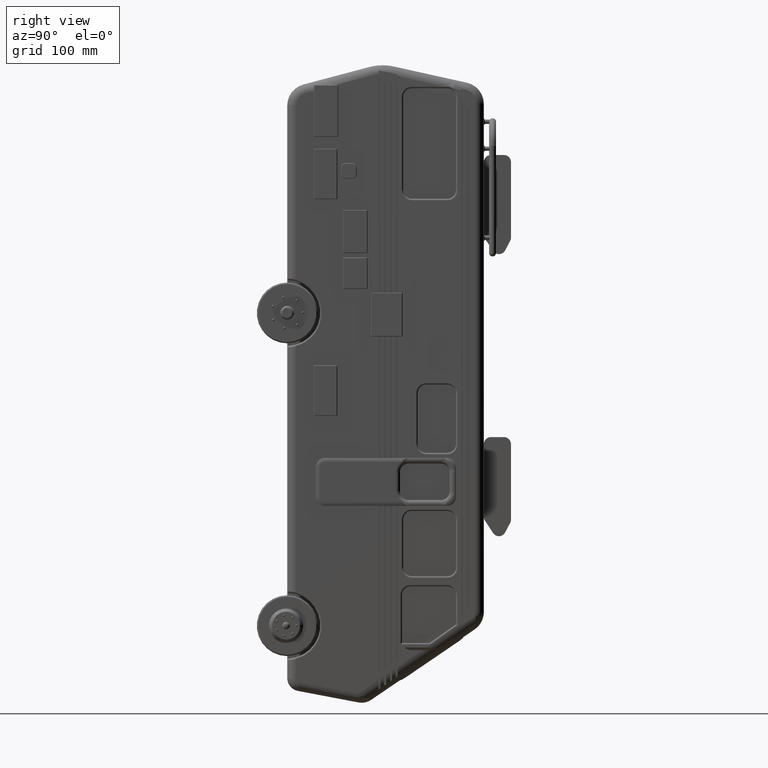
[diagram: clean part render]
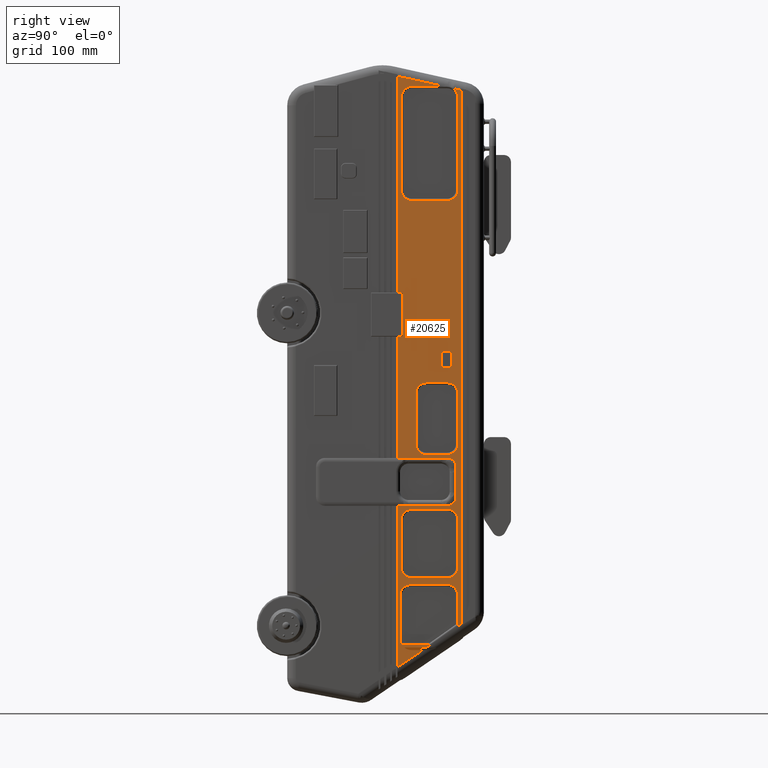
[diagram: same view with one face highlighted and labeled with its STEP entity id]
A machine part, right view. The second image highlights one B-rep face of the part: STEP entity #20625.
In plain terms, the highlighted planar face has unit normal (-1, -0, 0).
Its self-contained STEP definition (entity closure, byte-faithful):
#157 = CIRCLE ( 'NONE', #29480, 11.99999999999999645 ) ;
#339 = ORIENTED_EDGE ( 'NONE', *, *, #18274, .F. ) ;
#357 = ORIENTED_EDGE ( 'NONE', *, *, #33120, .T. ) ;
#441 = VECTOR ( 'NONE', #5405, 1000.000000000000000 ) ;
#612 = CARTESIAN_POINT ( 'NONE',  ( 125.0000000000000000, 303.6037843163708203, -674.7249456233656701 ) ) ;
#634 = CARTESIAN_POINT ( 'NONE',  ( 125.0000000000000000, 303.6037843163708203, -525.1387260740397096 ) ) ;
#698 = ORIENTED_EDGE ( 'NONE', *, *, #31299, .T. ) ;
#830 = DIRECTION ( 'NONE',  ( -0.000000000000000000, -1.000000000000000000, -0.000000000000000000 ) ) ;
#1021 = DIRECTION ( 'NONE',  ( -1.000000000000000000, -0.000000000000000000, 0.000000000000000000 ) ) ;
#1397 = ORIENTED_EDGE ( 'NONE', *, *, #27466, .T. ) ;
#1501 = ORIENTED_EDGE ( 'NONE', *, *, #14553, .T. ) ;
#1519 = DIRECTION ( 'NONE',  ( -0.000000000000000000, -1.000000000000000000, -0.000000000000000000 ) ) ;
#1606 = ORIENTED_EDGE ( 'NONE', *, *, #17308, .T. ) ;
#1633 = CARTESIAN_POINT ( 'NONE',  ( 125.0000000000000000, 286.5556520002770640, -583.9884732095368918 ) ) ;
#1727 = CARTESIAN_POINT ( 'NONE',  ( 125.0000000000000000, 286.5556520002770640, -529.0364440370944976 ) ) ;
#1951 = CARTESIAN_POINT ( 'NONE',  ( 125.0000000000000000, 298.5599982705451225, -220.9456795865248750 ) ) ;
#2019 = CARTESIAN_POINT ( 'NONE',  ( 125.0000000000000000, 233.6765236363687848, -113.8403045673677383 ) ) ;
#2027 = CARTESIAN_POINT ( 'NONE',  ( 125.0000000000000000, 298.5599982705451225, -655.0422913873096604 ) ) ;
#2155 = LINE ( 'NONE', #1727, #23562 ) ;
#2156 = ORIENTED_EDGE ( 'NONE', *, *, #29749, .F. ) ;
#2189 = EDGE_CURVE ( 'NONE', #19167, #23605, #28221, .T. ) ;
#2328 = EDGE_CURVE ( 'NONE', #6617, #37917, #35256, .T. ) ;
#2393 = DIRECTION ( 'NONE',  ( -1.000000000000000000, -0.000000000000000000, 0.000000000000000000 ) ) ;
#2469 = DIRECTION ( 'NONE',  ( -1.000000000000000000, -0.000000000000000000, 0.000000000000000000 ) ) ;
#2569 = CARTESIAN_POINT ( 'NONE',  ( 125.0000000000000000, 245.6765236363687848, -655.0422913873097741 ) ) ;
#2729 = VECTOR ( 'NONE', #40592, 1000.000000000000000 ) ;
#2769 = VERTEX_POINT ( 'NONE', #34084 ) ;
#2800 = CARTESIAN_POINT ( 'NONE',  ( 125.0000000000000000, 245.6765236363687848, -600.0470881281829634 ) ) ;
#2811 = VECTOR ( 'NONE', #7643, 999.9999999999998863 ) ;
#2923 = CARTESIAN_POINT ( 'NONE',  ( 125.0000000000000000, 286.5599982705450657, -588.0470881281829634 ) ) ;
#3038 = VECTOR ( 'NONE', #18476, 1000.000000000000000 ) ;
#3081 = CIRCLE ( 'NONE', #37182, 12.00000000000001066 ) ;
#3151 = VECTOR ( 'NONE', #16673, 1000.000000000000000 ) ;
#3718 = CARTESIAN_POINT ( 'NONE',  ( 125.0000000000000000, 302.5098556841416553, -719.8426730421438151 ) ) ;
#3810 = CARTESIAN_POINT ( 'NONE',  ( 125.0000000000000000, 296.5556520002771208, -573.9884732095366644 ) ) ;
#3943 = CARTESIAN_POINT ( 'NONE',  ( 125.0000000000000000, 282.7492049491030457, -101.8403045673676957 ) ) ;
#4031 = DIRECTION ( 'NONE',  ( -1.000000000000000000, -0.000000000000000000, 0.000000000000000000 ) ) ;
#4041 = LINE ( 'NONE', #23314, #40182 ) ;
#4184 = CARTESIAN_POINT ( 'NONE',  ( 125.0000000000000000, 245.6765236363687848, -220.9456795865249319 ) ) ;
#4347 = CARTESIAN_POINT ( 'NONE',  ( 125.0000000000000000, 258.1970487256591014, -750.0000000000000000 ) ) ;
#4423 = CARTESIAN_POINT ( 'NONE',  ( 125.0000000000000000, 229.3038499920727702, 0.000000000000000000 ) ) ;
#4508 = LINE ( 'NONE', #33534, #30570 ) ;
#4594 = VERTEX_POINT ( 'NONE', #14796 ) ;
#4966 = CARTESIAN_POINT ( 'NONE',  ( 125.0000000000000000, 245.6765236363687848, -113.8403045673676530 ) ) ;
#5116 = CARTESIAN_POINT ( 'NONE',  ( 125.0000000000000000, 259.6091833179260675, -747.0000000000000000 ) ) ;
#5140 = DIRECTION ( 'NONE',  ( -1.000000000000000000, -0.000000000000000000, 0.000000000000000000 ) ) ;
#5157 = LINE ( 'NONE', #21449, #2729 ) ;
#5239 = ORIENTED_EDGE ( 'NONE', *, *, #16142, .F. ) ;
#5240 = EDGE_CURVE ( 'NONE', #28544, #17658, #7276, .T. ) ;
#5405 = DIRECTION ( 'NONE',  ( 0.000000000000000000, -1.000000000000000000, 0.000000000000000000 ) ) ;
#5412 = CARTESIAN_POINT ( 'NONE',  ( 125.0000000000000000, 255.7747470904610623, -747.0000000000000000 ) ) ;
#5419 = CARTESIAN_POINT ( 'NONE',  ( 125.0000000000000000, 286.5599982705450657, -525.1387260740397096 ) ) ;
#5532 = ORIENTED_EDGE ( 'NONE', *, *, #6545, .T. ) ;
#5844 = VERTEX_POINT ( 'NONE', #6952 ) ;
#5859 = EDGE_CURVE ( 'NONE', #8742, #28544, #18052, .T. ) ;
#5929 = EDGE_CURVE ( 'NONE', #28363, #27022, #37049, .T. ) ;
#6098 = VERTEX_POINT ( 'NONE', #3718 ) ;
#6156 = VERTEX_POINT ( 'NONE', #34473 ) ;
#6191 = CARTESIAN_POINT ( 'NONE',  ( 125.0000000000000000, 233.6765236363687848, -600.0470881281830771 ) ) ;
#6245 = CIRCLE ( 'NONE', #11738, 12.00000000000001066 ) ;
#6373 = DIRECTION ( 'NONE',  ( -0.000000000000000000, -0.000000000000000000, 1.000000000000000000 ) ) ;
#6378 = CARTESIAN_POINT ( 'NONE',  ( 125.0000000000000000, 298.5599982705451225, -686.7249456233657838 ) ) ;
#6513 = LINE ( 'NONE', #36381, #33178 ) ;
#6518 = ORIENTED_EDGE ( 'NONE', *, *, #12597, .T. ) ;
#6545 = EDGE_CURVE ( 'NONE', #29831, #2769, #35048, .T. ) ;
#6548 = LINE ( 'NONE', #28808, #31191 ) ;
#6605 = CARTESIAN_POINT ( 'NONE',  ( 125.0000000000000000, 302.5098556841416553, -106.2245003896110944 ) ) ;
#6617 = VERTEX_POINT ( 'NONE', #38609 ) ;
#6624 = ORIENTED_EDGE ( 'NONE', *, *, #18803, .T. ) ;
#6695 = AXIS2_PLACEMENT_3D ( 'NONE', #31133, #21344, #37728 ) ;
#6952 = CARTESIAN_POINT ( 'NONE',  ( 125.0000000000000000, 293.8402461956485467, -104.3010178985947931 ) ) ;
#7128 = DIRECTION ( 'NONE',  ( 0.000000000000000000, 0.000000000000000000, 1.000000000000000000 ) ) ;
#7239 = DIRECTION ( 'NONE',  ( -0.000000000000000000, -0.000000000000000000, 1.000000000000000000 ) ) ;
#7250 = VERTEX_POINT ( 'NONE', #22042 ) ;
#7276 = LINE ( 'NONE', #40164, #8511 ) ;
#7281 = EDGE_CURVE ( 'NONE', #41910, #28688, #19232, .T. ) ;
#7321 = DIRECTION ( 'NONE',  ( -0.000000000000000000, 1.000000000000000000, -0.000000000000000000 ) ) ;
#7363 = LINE ( 'NONE', #612, #23966 ) ;
#7493 = EDGE_CURVE ( 'NONE', #9113, #19508, #3081, .T. ) ;
#7643 = DIRECTION ( 'NONE',  ( -0.000000000000000000, 0.8267128799608792766, 0.5626240433067085656 ) ) ;
#7762 = CARTESIAN_POINT ( 'NONE',  ( 125.0000000000000000, 298.5599982705451225, -721.5178463309102881 ) ) ;
#7878 = LINE ( 'NONE', #36890, #2811 ) ;
#7913 = CARTESIAN_POINT ( 'NONE',  ( 125.0000000000000000, 298.5599982705451225, -705.7924860525527038 ) ) ;
#8100 = EDGE_CURVE ( 'NONE', #17480, #42007, #23697, .T. ) ;
#8124 = VERTEX_POINT ( 'NONE', #3810 ) ;
#8406 = VECTOR ( 'NONE', #30975, 1000.000000000000000 ) ;
#8433 = VERTEX_POINT ( 'NONE', #17040 ) ;
#8452 = AXIS2_PLACEMENT_3D ( 'NONE', #15130, #35786, #28995 ) ;
#8511 = VECTOR ( 'NONE', #11366, 1000.000000000000000 ) ;
#8527 = VECTOR ( 'NONE', #28728, 1000.000000000000000 ) ;
#8601 = DIRECTION ( 'NONE',  ( 0.000000000000000000, 0.000000000000000000, 1.000000000000000000 ) ) ;
#8742 = VERTEX_POINT ( 'NONE', #25307 ) ;
#9078 = EDGE_CURVE ( 'NONE', #24638, #8742, #4508, .T. ) ;
#9113 = VERTEX_POINT ( 'NONE', #2923 ) ;
#9165 = EDGE_CURVE ( 'NONE', #8433, #9113, #36022, .T. ) ;
#9167 = AXIS2_PLACEMENT_3D ( 'NONE', #21669, #25476, #12041 ) ;
#9231 = FACE_BOUND ( 'NONE', #40627, .T. ) ;
#9321 = EDGE_CURVE ( 'NONE', #19508, #29831, #24295, .T. ) ;
#9407 = VERTEX_POINT ( 'NONE', #40616 ) ;
#9578 = VECTOR ( 'NONE', #35541, 1000.000000000000000 ) ;
#9689 = ORIENTED_EDGE ( 'NONE', *, *, #25150, .T. ) ;
#9824 = ORIENTED_EDGE ( 'NONE', *, *, #33940, .T. ) ;
#9994 = EDGE_CURVE ( 'NONE', #31913, #33259, #36863, .T. ) ;
#10040 = ORIENTED_EDGE ( 'NONE', *, *, #31592, .F. ) ;
#10383 = EDGE_CURVE ( 'NONE', #28688, #38789, #24460, .T. ) ;
#10546 = CARTESIAN_POINT ( 'NONE',  ( 125.0000000000000000, 302.5098556841416553, 0.000000000000000000 ) ) ;
#10639 = CARTESIAN_POINT ( 'NONE',  ( 125.0000000000000000, 242.0802129805560980, -529.0365180372574514 ) ) ;
#10758 = CARTESIAN_POINT ( 'NONE',  ( 125.0000000000000000, 430.3348421406453213, -134.5843848445908861 ) ) ;
#10810 = ORIENTED_EDGE ( 'NONE', *, *, #30506, .T. ) ;
#10848 = CARTESIAN_POINT ( 'NONE',  ( 125.0000000000000000, 298.5599982705451225, -705.7924860525527038 ) ) ;
#10854 = CARTESIAN_POINT ( 'NONE',  ( 125.0000000000000000, 279.2295902267034080, -529.0365180372574514 ) ) ;
#10931 = VECTOR ( 'NONE', #36359, 1000.000000000000000 ) ;
#11056 = DIRECTION ( 'NONE',  ( -0.000000000000000000, -0.000000000000000000, -1.000000000000000000 ) ) ;
#11215 = AXIS2_PLACEMENT_3D ( 'NONE', #4184, #1021, #14051 ) ;
#11366 = DIRECTION ( 'NONE',  ( -0.000000000000000000, -0.000000000000000000, 1.000000000000000000 ) ) ;
#11388 = VERTEX_POINT ( 'NONE', #37419 ) ;
#11504 = EDGE_CURVE ( 'NONE', #20799, #5844, #23108, .T. ) ;
#11613 = DIRECTION ( 'NONE',  ( -0.000000000000000000, -1.000000000000000000, -0.000000000000000000 ) ) ;
#11626 = EDGE_CURVE ( 'NONE', #8124, #28363, #25547, .T. ) ;
#11738 = AXIS2_PLACEMENT_3D ( 'NONE', #29608, #38773, #36174 ) ;
#11849 = DIRECTION ( 'NONE',  ( -0.000000000000000000, -0.000000000000000000, 1.000000000000000000 ) ) ;
#11877 = CARTESIAN_POINT ( 'NONE',  ( 125.0000000000000000, 286.5556520002770640, -529.0364440370944976 ) ) ;
#12021 = VERTEX_POINT ( 'NONE', #6191 ) ;
#12041 = DIRECTION ( 'NONE',  ( 0.000000000000000000, 0.000000000000000000, -1.000000000000000000 ) ) ;
#12077 = CARTESIAN_POINT ( 'NONE',  ( 125.0000000000000000, 286.5556520002770640, -529.0365180372574514 ) ) ;
#12144 = ORIENTED_EDGE ( 'NONE', *, *, #37863, .T. ) ;
#12215 = ORIENTED_EDGE ( 'NONE', *, *, #14284, .T. ) ;
#12365 = VECTOR ( 'NONE', #26670, 1000.000000000000000 ) ;
#12404 = ORIENTED_EDGE ( 'NONE', *, *, #22891, .T. ) ;
#12427 = DIRECTION ( 'NONE',  ( 0.000000000000000000, 1.000000000000000000, 0.000000000000000000 ) ) ;
#12516 = DIRECTION ( 'NONE',  ( -1.000000000000000000, -0.000000000000000000, 0.000000000000000000 ) ) ;
#12597 = EDGE_CURVE ( 'NONE', #17658, #41910, #157, .T. ) ;
#12607 = VECTOR ( 'NONE', #19296, 1000.000000000000000 ) ;
#12717 = LINE ( 'NONE', #38934, #8527 ) ;
#12875 = DIRECTION ( 'NONE',  ( 0.000000000000000000, 0.000000000000000000, 1.000000000000000000 ) ) ;
#13079 = CARTESIAN_POINT ( 'NONE',  ( 125.0000000000000000, 241.6491771817819654, -529.0364440370944976 ) ) ;
#13132 = VECTOR ( 'NONE', #11056, 1000.000000000000000 ) ;
#13322 = ORIENTED_EDGE ( 'NONE', *, *, #31502, .F. ) ;
#13410 = DIRECTION ( 'NONE',  ( 0.000000000000000000, 0.000000000000000000, 1.000000000000000000 ) ) ;
#13417 = CARTESIAN_POINT ( 'NONE',  ( 125.0000000000000000, 259.6091833179260675, -747.0000000000000000 ) ) ;
#13764 = VERTEX_POINT ( 'NONE', #1951 ) ;
#13996 = VERTEX_POINT ( 'NONE', #10854 ) ;
#14044 = CARTESIAN_POINT ( 'NONE',  ( 125.0000000000000000, 303.6037843163708203, -588.0470881281829634 ) ) ;
#14049 = ORIENTED_EDGE ( 'NONE', *, *, #34078, .T. ) ;
#14051 = DIRECTION ( 'NONE',  ( 0.000000000000000000, 0.000000000000000000, 1.000000000000000000 ) ) ;
#14093 = CARTESIAN_POINT ( 'NONE',  ( 125.0000000000000000, 291.3439136609864590, -406.9897087741020982 ) ) ;
#14264 = EDGE_CURVE ( 'NONE', #4594, #9407, #32997, .T. ) ;
#14284 = EDGE_CURVE ( 'NONE', #23989, #24056, #34844, .T. ) ;
#14286 = LINE ( 'NONE', #634, #29621 ) ;
#14346 = EDGE_CURVE ( 'NONE', #22848, #27022, #22701, .T. ) ;
#14553 = EDGE_CURVE ( 'NONE', #20934, #23989, #39819, .T. ) ;
#14623 = CARTESIAN_POINT ( 'NONE',  ( 125.0000000000000000, 262.4472728460677899, -442.6375505512436348 ) ) ;
#14681 = EDGE_CURVE ( 'NONE', #16564, #34504, #24268, .T. ) ;
#14796 = CARTESIAN_POINT ( 'NONE',  ( 125.0000000000000000, 296.5556520002771208, -539.0364440370946113 ) ) ;
#14850 = CARTESIAN_POINT ( 'NONE',  ( 125.0000000000000000, 303.6037843163708203, -743.8657121789846087 ) ) ;
#14922 = VECTOR ( 'NONE', #11849, 1000.000000000000000 ) ;
#14952 = CIRCLE ( 'NONE', #6695, 12.00000000000001066 ) ;
#15003 = ORIENTED_EDGE ( 'NONE', *, *, #9994, .T. ) ;
#15080 = CARTESIAN_POINT ( 'NONE',  ( 125.0000000000000000, 234.9519402214909576, -339.0091283654554672 ) ) ;
#15130 = CARTESIAN_POINT ( 'NONE',  ( 125.0000000000000000, 262.4472728460677331, -513.1387260740395959 ) ) ;
#15137 = ORIENTED_EDGE ( 'NONE', *, *, #14264, .F. ) ;
#15574 = VERTEX_POINT ( 'NONE', #35323 ) ;
#15685 = CARTESIAN_POINT ( 'NONE',  ( 125.0000000000000000, 250.4472728460677047, -513.1387260740395959 ) ) ;
#15843 = DIRECTION ( 'NONE',  ( 0.000000000000000000, -0.9762608648340964645, 0.2165980696898799629 ) ) ;
#16142 = EDGE_CURVE ( 'NONE', #42007, #17519, #21137, .T. ) ;
#16328 = ORIENTED_EDGE ( 'NONE', *, *, #9078, .T. ) ;
#16457 = VECTOR ( 'NONE', #21096, 1000.000000000000000 ) ;
#16564 = VERTEX_POINT ( 'NONE', #39056 ) ;
#16619 = ORIENTED_EDGE ( 'NONE', *, *, #9165, .T. ) ;
#16631 = DIRECTION ( 'NONE',  ( -0.000000000000000000, -1.000000000000000000, -0.000000000000000000 ) ) ;
#16637 = VECTOR ( 'NONE', #38014, 999.9999999999998863 ) ;
#16673 = DIRECTION ( 'NONE',  ( 0.000000000000000000, -1.000000000000000000, 0.000000000000000000 ) ) ;
#16745 = EDGE_CURVE ( 'NONE', #2769, #29641, #6548, .T. ) ;
#16893 = CARTESIAN_POINT ( 'NONE',  ( 125.0000000000000000, 286.5556520002771208, -573.9884732095367781 ) ) ;
#17040 = CARTESIAN_POINT ( 'NONE',  ( 125.0000000000000000, 245.6765236363688416, -588.0470881281829634 ) ) ;
#17142 = CIRCLE ( 'NONE', #38939, 12.00000000000001066 ) ;
#17279 = ORIENTED_EDGE ( 'NONE', *, *, #32659, .T. ) ;
#17305 = CARTESIAN_POINT ( 'NONE',  ( 125.0000000000000000, 259.6091833179260675, -749.0389639580405401 ) ) ;
#17308 = EDGE_CURVE ( 'NONE', #33331, #34091, #18045, .T. ) ;
#17480 = VERTEX_POINT ( 'NONE', #36637 ) ;
#17519 = VERTEX_POINT ( 'NONE', #20676 ) ;
#17658 = VERTEX_POINT ( 'NONE', #2019 ) ;
#17831 = CARTESIAN_POINT ( 'NONE',  ( 125.0000000000000000, 232.3145492378976940, -743.8657121789846087 ) ) ;
#17988 = AXIS2_PLACEMENT_3D ( 'NONE', #31792, #40949, #37757 ) ;
#17989 = ORIENTED_EDGE ( 'NONE', *, *, #11626, .T. ) ;
#17992 = CIRCLE ( 'NONE', #29671, 12.00000000000001066 ) ;
#18045 = LINE ( 'NONE', #31055, #14922 ) ;
#18052 = CIRCLE ( 'NONE', #11215, 12.00000000000001066 ) ;
#18092 = AXIS2_PLACEMENT_3D ( 'NONE', #19772, #2469, #18945 ) ;
#18252 = DIRECTION ( 'NONE',  ( -1.000000000000000000, -0.000000000000000000, 0.000000000000000000 ) ) ;
#18274 = EDGE_CURVE ( 'NONE', #6156, #17480, #4041, .T. ) ;
#18285 = ORIENTED_EDGE ( 'NONE', *, *, #26625, .F. ) ;
#18332 = CARTESIAN_POINT ( 'NONE',  ( 125.0000000000000000, 279.6606272595043947, -529.0364440370944976 ) ) ;
#18366 = DIRECTION ( 'NONE',  ( 0.000000000000000000, 0.000000000000000000, 1.000000000000000000 ) ) ;
#18476 = DIRECTION ( 'NONE',  ( 0.000000000000000000, 1.000000000000000000, 0.000000000000000000 ) ) ;
#18484 = DIRECTION ( 'NONE',  ( 0.000000000000000000, -1.000000000000000000, 0.000000000000000000 ) ) ;
#18508 = ORIENTED_EDGE ( 'NONE', *, *, #8100, .F. ) ;
#18636 = B_SPLINE_CURVE_WITH_KNOTS ( 'NONE', 3,
 ( #38683, #13079, #26336, #19277 ),
 .UNSPECIFIED., .F., .F.,
 ( 4, 4 ),
 ( 2.500467750533632250E-15, 0.0006457498208451285630 ),
 .UNSPECIFIED. ) ;
#18724 = VECTOR ( 'NONE', #12875, 1000.000000000000000 ) ;
#18803 = EDGE_CURVE ( 'NONE', #5844, #15574, #21081, .T. ) ;
#18860 = EDGE_CURVE ( 'NONE', #40160, #13996, #29134, .T. ) ;
#18889 = VERTEX_POINT ( 'NONE', #17305 ) ;
#18942 = VECTOR ( 'NONE', #30922, 1000.000000000000000 ) ;
#18945 = DIRECTION ( 'NONE',  ( 0.000000000000000000, 0.000000000000000000, 1.000000000000000000 ) ) ;
#19062 = PLANE ( 'NONE',  #19841 ) ;
#19121 = ORIENTED_EDGE ( 'NONE', *, *, #23998, .T. ) ;
#19161 = VECTOR ( 'NONE', #6373, 1000.000000000000000 ) ;
#19167 = VERTEX_POINT ( 'NONE', #28812 ) ;
#19212 = CARTESIAN_POINT ( 'NONE',  ( 125.0000000000000000, 286.5599982705451225, -686.7249456233656701 ) ) ;
#19232 = LINE ( 'NONE', #25664, #31016 ) ;
#19277 = CARTESIAN_POINT ( 'NONE',  ( 125.0000000000000000, 242.0802129805560980, -529.0365180372574514 ) ) ;
#19296 = DIRECTION ( 'NONE',  ( -0.000000000000000000, -0.000000000000000000, -1.000000000000000000 ) ) ;
#19358 = ORIENTED_EDGE ( 'NONE', *, *, #2189, .T. ) ;
#19508 = VERTEX_POINT ( 'NONE', #19788 ) ;
#19702 = DIRECTION ( 'NONE',  ( -0.000000000000000000, -0.000000000000000000, 1.000000000000000000 ) ) ;
#19709 = CARTESIAN_POINT ( 'NONE',  ( 125.0000000000000000, 296.5556520002771208, -539.0364440370946113 ) ) ;
#19720 = CARTESIAN_POINT ( 'NONE',  ( 125.0000000000000000, 298.5599982705451225, -705.7924860525527038 ) ) ;
#19772 = CARTESIAN_POINT ( 'NONE',  ( 125.0000000000000000, 286.5599982705451225, -220.9456795865249319 ) ) ;
#19779 = LINE ( 'NONE', #10546, #10931 ) ;
#19788 = CARTESIAN_POINT ( 'NONE',  ( 125.0000000000000000, 298.5599982705451225, -600.0470881281830771 ) ) ;
#19814 = EDGE_CURVE ( 'NONE', #16564, #6617, #5157, .T. ) ;
#19817 = ORIENTED_EDGE ( 'NONE', *, *, #7493, .T. ) ;
#19841 = AXIS2_PLACEMENT_3D ( 'NONE', #26119, #2393, #32281 ) ;
#19878 = CARTESIAN_POINT ( 'NONE',  ( 125.0000000000000000, 430.3348421406453213, -134.5843848445908861 ) ) ;
#19953 = ORIENTED_EDGE ( 'NONE', *, *, #24259, .F. ) ;
#19964 = CARTESIAN_POINT ( 'NONE',  ( 125.0000000000000000, 286.5556520002770640, -583.9884732095368918 ) ) ;
#19975 = ORIENTED_EDGE ( 'NONE', *, *, #28218, .F. ) ;
#20071 = ORIENTED_EDGE ( 'NONE', *, *, #34963, .T. ) ;
#20345 = LINE ( 'NONE', #7913, #8406 ) ;
#20503 = DIRECTION ( 'NONE',  ( 0.000000000000000000, 0.000000000000000000, 1.000000000000000000 ) ) ;
#20588 = DIRECTION ( 'NONE',  ( -1.000000000000000000, -0.000000000000000000, 0.000000000000000000 ) ) ;
#20625 = ADVANCED_FACE ( 'NONE', ( #42054, #25906, #38872, #9231, #28665 ), #19062, .F. ) ;
#20676 = CARTESIAN_POINT ( 'NONE',  ( 125.0000000000000000, 280.1653429746000370, -425.6717036198438677 ) ) ;
#20799 = VERTEX_POINT ( 'NONE', #6605 ) ;
#20820 = AXIS2_PLACEMENT_3D ( 'NONE', #2569, #5140, #28646 ) ;
#20934 = VERTEX_POINT ( 'NONE', #25654 ) ;
#21081 = CIRCLE ( 'NONE', #32638, 11.99999999999999645 ) ;
#21096 = DIRECTION ( 'NONE',  ( -0.000000000000000000, -0.000000000000000000, -1.000000000000000000 ) ) ;
#21137 = LINE ( 'NONE', #34108, #18942 ) ;
#21183 = VERTEX_POINT ( 'NONE', #27112 ) ;
#21344 = DIRECTION ( 'NONE',  ( -1.000000000000000000, -0.000000000000000000, 0.000000000000000000 ) ) ;
#21409 = DIRECTION ( 'NONE',  ( 0.000000000000000000, -1.000000000000000000, 0.000000000000000000 ) ) ;
#21447 = CIRCLE ( 'NONE', #20820, 12.00000000000001066 ) ;
#21449 = CARTESIAN_POINT ( 'NONE',  ( 125.0000000000000000, 255.7747470904610623, -747.0000000000000000 ) ) ;
#21452 = CARTESIAN_POINT ( 'NONE',  ( 125.0000000000000000, 286.5599982705451225, -513.1387260740395959 ) ) ;
#21538 = B_SPLINE_CURVE_WITH_KNOTS ( 'NONE', 3,
 ( #40909, #24761, #18332, #37721 ),
 .UNSPECIFIED., .F., .F.,
 ( 4, 4 ),
 ( 0.0006465555555503088190, 0.001293111111103282173 ),
 .UNSPECIFIED. ) ;
#21669 = CARTESIAN_POINT ( 'NONE',  ( 125.0000000000000000, 286.5556520002771208, -539.0364440370944976 ) ) ;
#21763 = EDGE_LOOP ( 'NONE', ( #18508, #339, #41622, #5239 ) ) ;
#21847 = CARTESIAN_POINT ( 'NONE',  ( 125.0000000000000000, 292.3549432258376441, -726.7536551318230522 ) ) ;
#21919 = DIRECTION ( 'NONE',  ( 0.000000000000000000, 1.000000000000000000, 0.000000000000000000 ) ) ;
#22042 = CARTESIAN_POINT ( 'NONE',  ( 125.0000000000000000, 229.3038499920727702, -339.0091283654554672 ) ) ;
#22264 = ORIENTED_EDGE ( 'NONE', *, *, #19814, .F. ) ;
#22470 = ORIENTED_EDGE ( 'NONE', *, *, #9321, .T. ) ;
#22517 = DIRECTION ( 'NONE',  ( -1.000000000000000000, -0.000000000000000000, 0.000000000000000000 ) ) ;
#22701 = LINE ( 'NONE', #4423, #18724 ) ;
#22731 = CARTESIAN_POINT ( 'NONE',  ( 125.0000000000000000, 286.5599982705450657, -232.9456795865249319 ) ) ;
#22732 = VERTEX_POINT ( 'NONE', #25236 ) ;
#22817 = AXIS2_PLACEMENT_3D ( 'NONE', #16893, #4031, #20503 ) ;
#22848 = VERTEX_POINT ( 'NONE', #36235 ) ;
#22865 = CARTESIAN_POINT ( 'NONE',  ( 125.0000000000000000, 298.5599982705451225, -454.6375505512436916 ) ) ;
#22891 = EDGE_CURVE ( 'NONE', #23605, #20934, #14286, .T. ) ;
#23108 = LINE ( 'NONE', #19878, #40456 ) ;
#23314 = CARTESIAN_POINT ( 'NONE',  ( 125.0000000000000000, 291.3439136609864590, -406.9897087741020982 ) ) ;
#23444 = AXIS2_PLACEMENT_3D ( 'NONE', #21452, #24433, #8601 ) ;
#23494 = VECTOR ( 'NONE', #18484, 1000.000000000000000 ) ;
#23549 = VECTOR ( 'NONE', #40455, 1000.000000000000000 ) ;
#23562 = VECTOR ( 'NONE', #21409, 1000.000000000000000 ) ;
#23603 = DIRECTION ( 'NONE',  ( 0.000000000000000000, -0.9762608648340964645, 0.2165980696898799629 ) ) ;
#23605 = VERTEX_POINT ( 'NONE', #5419 ) ;
#23609 = EDGE_CURVE ( 'NONE', #9407, #39102, #25159, .T. ) ;
#23697 = LINE ( 'NONE', #14093, #3151 ) ;
#23787 = ORIENTED_EDGE ( 'NONE', *, *, #23609, .F. ) ;
#23966 = VECTOR ( 'NONE', #33431, 1000.000000000000000 ) ;
#23976 = VERTEX_POINT ( 'NONE', #14623 ) ;
#23989 = VERTEX_POINT ( 'NONE', #15685 ) ;
#23995 = EDGE_CURVE ( 'NONE', #26793, #19167, #32299, .T. ) ;
#23998 = EDGE_CURVE ( 'NONE', #12021, #8433, #34413, .T. ) ;
#24056 = VERTEX_POINT ( 'NONE', #33753 ) ;
#24259 = EDGE_CURVE ( 'NONE', #11388, #40156, #2155, .T. ) ;
#24268 = LINE ( 'NONE', #5412, #3038 ) ;
#24295 = LINE ( 'NONE', #37270, #16457 ) ;
#24337 = CARTESIAN_POINT ( 'NONE',  ( 125.0000000000000000, 229.3038499920727702, -529.0364440370944976 ) ) ;
#24406 = LINE ( 'NONE', #21847, #16637 ) ;
#24433 = DIRECTION ( 'NONE',  ( -1.000000000000000000, -0.000000000000000000, 0.000000000000000000 ) ) ;
#24460 = LINE ( 'NONE', #10758, #35606 ) ;
#24555 = VERTEX_POINT ( 'NONE', #36567 ) ;
#24577 = EDGE_CURVE ( 'NONE', #26523, #33331, #24674, .T. ) ;
#24638 = VERTEX_POINT ( 'NONE', #22731 ) ;
#24674 = LINE ( 'NONE', #14850, #39276 ) ;
#24737 = DIRECTION ( 'NONE',  ( 0.000000000000000000, -1.000000000000000000, 0.000000000000000000 ) ) ;
#24761 = CARTESIAN_POINT ( 'NONE',  ( 125.0000000000000000, 279.4451087452219440, -529.0365180372574514 ) ) ;
#24997 = VERTEX_POINT ( 'NONE', #34568 ) ;
#25053 = CARTESIAN_POINT ( 'NONE',  ( 125.0000000000000000, 232.3145492378976940, -686.7249456233657838 ) ) ;
#25150 = EDGE_CURVE ( 'NONE', #21183, #22732, #7363, .T. ) ;
#25159 = LINE ( 'NONE', #11877, #23494 ) ;
#25198 = VERTEX_POINT ( 'NONE', #39430 ) ;
#25236 = CARTESIAN_POINT ( 'NONE',  ( 125.0000000000000000, 286.5599982705450657, -674.7249456233656701 ) ) ;
#25281 = CARTESIAN_POINT ( 'NONE',  ( 125.0000000000000000, 255.7747470904610623, -750.0000000000000000 ) ) ;
#25307 = CARTESIAN_POINT ( 'NONE',  ( 125.0000000000000000, 245.6765236363688416, -232.9456795865249319 ) ) ;
#25360 = LINE ( 'NONE', #31961, #9578 ) ;
#25476 = DIRECTION ( 'NONE',  ( 1.000000000000000000, 0.000000000000000000, 0.000000000000000000 ) ) ;
#25547 = CIRCLE ( 'NONE', #22817, 10.00000000000000888 ) ;
#25654 = CARTESIAN_POINT ( 'NONE',  ( 125.0000000000000000, 262.4472728460677899, -525.1387260740397096 ) ) ;
#25664 = CARTESIAN_POINT ( 'NONE',  ( 125.0000000000000000, 303.6037843163708203, -101.8403045673676957 ) ) ;
#25767 = ORIENTED_EDGE ( 'NONE', *, *, #35162, .T. ) ;
#25906 = FACE_BOUND ( 'NONE', #34597, .T. ) ;
#26119 = CARTESIAN_POINT ( 'NONE',  ( 125.0000000000000000, 303.6037843163708203, -705.7924860525527038 ) ) ;
#26243 = DIRECTION ( 'NONE',  ( -1.000000000000000000, -0.000000000000000000, 0.000000000000000000 ) ) ;
#26336 = CARTESIAN_POINT ( 'NONE',  ( 125.0000000000000000, 241.8646932280096564, -529.0365180372580198 ) ) ;
#26523 = VERTEX_POINT ( 'NONE', #35656 ) ;
#26625 = EDGE_CURVE ( 'NONE', #36830, #25198, #27157, .T. ) ;
#26670 = DIRECTION ( 'NONE',  ( -0.000000000000000000, 1.000000000000000000, -0.000000000000000000 ) ) ;
#26793 = VERTEX_POINT ( 'NONE', #22865 ) ;
#27022 = VERTEX_POINT ( 'NONE', #28157 ) ;
#27112 = CARTESIAN_POINT ( 'NONE',  ( 125.0000000000000000, 244.3145492378977508, -674.7249456233656701 ) ) ;
#27157 = LINE ( 'NONE', #36481, #29487 ) ;
#27326 = CARTESIAN_POINT ( 'NONE',  ( 125.0000000000000000, 233.6765236363687848, -220.9456795865248750 ) ) ;
#27425 = EDGE_CURVE ( 'NONE', #4594, #8124, #29099, .T. ) ;
#27466 = EDGE_CURVE ( 'NONE', #11388, #40160, #18636, .T. ) ;
#27664 = ORIENTED_EDGE ( 'NONE', *, *, #32761, .T. ) ;
#27832 = CARTESIAN_POINT ( 'NONE',  ( 125.0000000000000000, 303.6037843163708203, -442.6375505512436348 ) ) ;
#28020 = VECTOR ( 'NONE', #7321, 1000.000000000000000 ) ;
#28157 = CARTESIAN_POINT ( 'NONE',  ( 125.0000000000000000, 229.3038499920727702, -583.9884732095368918 ) ) ;
#28178 = ORIENTED_EDGE ( 'NONE', *, *, #34938, .T. ) ;
#28218 = EDGE_CURVE ( 'NONE', #7250, #38789, #34494, .T. ) ;
#28221 = CIRCLE ( 'NONE', #23444, 12.00000000000001066 ) ;
#28231 = EDGE_CURVE ( 'NONE', #17519, #6156, #12717, .T. ) ;
#28363 = VERTEX_POINT ( 'NONE', #19964 ) ;
#28544 = VERTEX_POINT ( 'NONE', #27326 ) ;
#28646 = DIRECTION ( 'NONE',  ( 0.000000000000000000, 0.000000000000000000, 1.000000000000000000 ) ) ;
#28665 = FACE_BOUND ( 'NONE', #21763, .T. ) ;
#28688 = VERTEX_POINT ( 'NONE', #3943 ) ;
#28728 = DIRECTION ( 'NONE',  ( -0.000000000000000000, 1.000000000000000000, -0.000000000000000000 ) ) ;
#28808 = CARTESIAN_POINT ( 'NONE',  ( 125.0000000000000000, 303.6037843163708203, -667.0422913873097741 ) ) ;
#28812 = CARTESIAN_POINT ( 'NONE',  ( 125.0000000000000000, 298.5599982705451225, -513.1387260740395959 ) ) ;
#28928 = LINE ( 'NONE', #15080, #441 ) ;
#28995 = DIRECTION ( 'NONE',  ( 0.000000000000000000, 0.000000000000000000, 1.000000000000000000 ) ) ;
#29099 = LINE ( 'NONE', #19709, #41102 ) ;
#29134 = LINE ( 'NONE', #12077, #29240 ) ;
#29240 = VECTOR ( 'NONE', #21919, 1000.000000000000000 ) ;
#29265 = DIRECTION ( 'NONE',  ( -0.000000000000000000, 1.000000000000000000, -0.000000000000000000 ) ) ;
#29357 = ORIENTED_EDGE ( 'NONE', *, *, #33901, .T. ) ;
#29366 = VERTEX_POINT ( 'NONE', #38451 ) ;
#29480 = AXIS2_PLACEMENT_3D ( 'NONE', #4966, #20588, #33572 ) ;
#29487 = VECTOR ( 'NONE', #7239, 1000.000000000000000 ) ;
#29520 = DIRECTION ( 'NONE',  ( 0.000000000000000000, 0.000000000000000000, -1.000000000000000000 ) ) ;
#29608 = CARTESIAN_POINT ( 'NONE',  ( 125.0000000000000000, 244.3145492378976940, -686.7249456233656701 ) ) ;
#29621 = VECTOR ( 'NONE', #830, 1000.000000000000000 ) ;
#29641 = VERTEX_POINT ( 'NONE', #36595 ) ;
#29671 = AXIS2_PLACEMENT_3D ( 'NONE', #32574, #12516, #41497 ) ;
#29746 = DIRECTION ( 'NONE',  ( -0.000000000000000000, -0.8165068920595981439, -0.5773356867708557827 ) ) ;
#29749 = EDGE_CURVE ( 'NONE', #25198, #7250, #28928, .T. ) ;
#29831 = VERTEX_POINT ( 'NONE', #2027 ) ;
#30467 = ORIENTED_EDGE ( 'NONE', *, *, #7281, .T. ) ;
#30506 = EDGE_CURVE ( 'NONE', #13996, #39102, #21538, .T. ) ;
#30570 = VECTOR ( 'NONE', #1519, 1000.000000000000000 ) ;
#30922 = DIRECTION ( 'NONE',  ( 0.000000000000000000, 0.000000000000000000, -1.000000000000000000 ) ) ;
#30975 = DIRECTION ( 'NONE',  ( -0.000000000000000000, -0.000000000000000000, -1.000000000000000000 ) ) ;
#31016 = VECTOR ( 'NONE', #29265, 1000.000000000000000 ) ;
#31033 = CIRCLE ( 'NONE', #18092, 12.00000000000001066 ) ;
#31040 = ORIENTED_EDGE ( 'NONE', *, *, #38500, .F. ) ;
#31055 = CARTESIAN_POINT ( 'NONE',  ( 125.0000000000000000, 232.3145492378976940, -705.7924860525527038 ) ) ;
#31133 = CARTESIAN_POINT ( 'NONE',  ( 125.0000000000000000, 262.4472728460677331, -454.6375505512436348 ) ) ;
#31183 = DIRECTION ( 'NONE',  ( -0.000000000000000000, -0.000000000000000000, -1.000000000000000000 ) ) ;
#31191 = VECTOR ( 'NONE', #16631, 1000.000000000000000 ) ;
#31299 = EDGE_CURVE ( 'NONE', #29366, #12021, #35864, .T. ) ;
#31438 = DIRECTION ( 'NONE',  ( -0.000000000000000000, -0.000000000000000000, 1.000000000000000000 ) ) ;
#31502 = EDGE_CURVE ( 'NONE', #24997, #36830, #25360, .T. ) ;
#31592 = EDGE_CURVE ( 'NONE', #20799, #6098, #19779, .T. ) ;
#31786 = ORIENTED_EDGE ( 'NONE', *, *, #39383, .T. ) ;
#31792 = CARTESIAN_POINT ( 'NONE',  ( 125.0000000000000000, 286.5599982705451225, -655.0422913873097741 ) ) ;
#31913 = VERTEX_POINT ( 'NONE', #6378 ) ;
#31961 = CARTESIAN_POINT ( 'NONE',  ( 125.0000000000000000, 234.9519402214909576, -389.3071945278687167 ) ) ;
#32281 = DIRECTION ( 'NONE',  ( 0.000000000000000000, 0.000000000000000000, 1.000000000000000000 ) ) ;
#32299 = LINE ( 'NONE', #19720, #12607 ) ;
#32303 = LINE ( 'NONE', #38900, #36988 ) ;
#32526 = ORIENTED_EDGE ( 'NONE', *, *, #27425, .T. ) ;
#32574 = CARTESIAN_POINT ( 'NONE',  ( 125.0000000000000000, 286.5599982705451225, -454.6375505512436348 ) ) ;
#32606 = EDGE_LOOP ( 'NONE', ( #16619, #19817, #22470, #5532, #41574, #25767, #698, #19121 ) ) ;
#32638 = AXIS2_PLACEMENT_3D ( 'NONE', #36989, #18252, #37221 ) ;
#32659 = EDGE_CURVE ( 'NONE', #18889, #6098, #7878, .T. ) ;
#32761 = EDGE_CURVE ( 'NONE', #22732, #31913, #17142, .T. ) ;
#32997 = CIRCLE ( 'NONE', #9167, 10.00000000000000888 ) ;
#33000 = CARTESIAN_POINT ( 'NONE',  ( 125.0000000000000000, 286.5599982705451225, -600.0470881281829634 ) ) ;
#33120 = EDGE_CURVE ( 'NONE', #34091, #21183, #6245, .T. ) ;
#33178 = VECTOR ( 'NONE', #7128, 1000.000000000000000 ) ;
#33259 = VERTEX_POINT ( 'NONE', #7762 ) ;
#33331 = VERTEX_POINT ( 'NONE', #17831 ) ;
#33431 = DIRECTION ( 'NONE',  ( -0.000000000000000000, 1.000000000000000000, -0.000000000000000000 ) ) ;
#33534 = CARTESIAN_POINT ( 'NONE',  ( 125.0000000000000000, 303.6037843163708203, -232.9456795865249035 ) ) ;
#33572 = DIRECTION ( 'NONE',  ( 0.000000000000000000, 0.000000000000000000, 1.000000000000000000 ) ) ;
#33669 = VECTOR ( 'NONE', #31438, 1000.000000000000000 ) ;
#33685 = VECTOR ( 'NONE', #24737, 1000.000000000000000 ) ;
#33752 = ORIENTED_EDGE ( 'NONE', *, *, #10383, .T. ) ;
#33753 = CARTESIAN_POINT ( 'NONE',  ( 125.0000000000000000, 250.4472728460677047, -454.6375505512436916 ) ) ;
#33842 = CARTESIAN_POINT ( 'NONE',  ( 125.0000000000000000, 229.3038499920727702, 0.000000000000000000 ) ) ;
#33897 = ORIENTED_EDGE ( 'NONE', *, *, #24577, .T. ) ;
#33901 = EDGE_CURVE ( 'NONE', #33259, #26523, #32303, .T. ) ;
#33940 = EDGE_CURVE ( 'NONE', #15574, #13764, #20345, .T. ) ;
#34078 = EDGE_CURVE ( 'NONE', #22848, #37917, #24406, .T. ) ;
#34084 = CARTESIAN_POINT ( 'NONE',  ( 125.0000000000000000, 286.5599982705450657, -667.0422913873097741 ) ) ;
#34091 = VERTEX_POINT ( 'NONE', #25053 ) ;
#34108 = CARTESIAN_POINT ( 'NONE',  ( 125.0000000000000000, 280.1653429745999802, -406.9897087741020982 ) ) ;
#34413 = CIRCLE ( 'NONE', #35764, 12.00000000000001066 ) ;
#34473 = CARTESIAN_POINT ( 'NONE',  ( 125.0000000000000000, 291.3439136609864590, -425.6717036198438677 ) ) ;
#34494 = LINE ( 'NONE', #33842, #23549 ) ;
#34504 = VERTEX_POINT ( 'NONE', #13417 ) ;
#34568 = CARTESIAN_POINT ( 'NONE',  ( 125.0000000000000000, 229.3038499920727702, -389.3071945278687167 ) ) ;
#34597 = EDGE_LOOP ( 'NONE', ( #29357, #33897, #1606, #357, #9689, #27664, #15003 ) ) ;
#34750 = ORIENTED_EDGE ( 'NONE', *, *, #14346, .F. ) ;
#34844 = LINE ( 'NONE', #38677, #33669 ) ;
#34938 = EDGE_CURVE ( 'NONE', #24555, #26793, #17992, .T. ) ;
#34963 = EDGE_CURVE ( 'NONE', #13764, #24638, #31033, .T. ) ;
#35048 = CIRCLE ( 'NONE', #17988, 12.00000000000001066 ) ;
#35162 = EDGE_CURVE ( 'NONE', #29641, #29366, #21447, .T. ) ;
#35194 = ORIENTED_EDGE ( 'NONE', *, *, #2328, .F. ) ;
#35204 = DIRECTION ( 'NONE',  ( -1.000000000000000000, -0.000000000000000000, 0.000000000000000000 ) ) ;
#35251 = ORIENTED_EDGE ( 'NONE', *, *, #23995, .T. ) ;
#35256 = LINE ( 'NONE', #25281, #37007 ) ;
#35323 = CARTESIAN_POINT ( 'NONE',  ( 125.0000000000000000, 298.5599982705451225, -113.8403045673677525 ) ) ;
#35541 = DIRECTION ( 'NONE',  ( -0.000000000000000000, 1.000000000000000000, -0.000000000000000000 ) ) ;
#35594 = ORIENTED_EDGE ( 'NONE', *, *, #5240, .T. ) ;
#35606 = VECTOR ( 'NONE', #23603, 1000.000000000000000 ) ;
#35639 = CARTESIAN_POINT ( 'NONE',  ( 125.0000000000000000, 233.6765236363687848, -705.7924860525527038 ) ) ;
#35656 = CARTESIAN_POINT ( 'NONE',  ( 125.0000000000000000, 266.9541458940259417, -743.8657121789846087 ) ) ;
#35764 = AXIS2_PLACEMENT_3D ( 'NONE', #2800, #22517, #41858 ) ;
#35786 = DIRECTION ( 'NONE',  ( -1.000000000000000000, -0.000000000000000000, 0.000000000000000000 ) ) ;
#35864 = LINE ( 'NONE', #35639, #19161 ) ;
#36022 = LINE ( 'NONE', #14044, #12365 ) ;
#36174 = DIRECTION ( 'NONE',  ( 0.000000000000000000, 0.000000000000000000, 1.000000000000000000 ) ) ;
#36235 = CARTESIAN_POINT ( 'NONE',  ( 125.0000000000000000, 229.3038499920727702, -769.6634269159128507 ) ) ;
#36359 = DIRECTION ( 'NONE',  ( 0.000000000000000000, 0.000000000000000000, -1.000000000000000000 ) ) ;
#36381 = CARTESIAN_POINT ( 'NONE',  ( 125.0000000000000000, 229.3038499920727702, 0.000000000000000000 ) ) ;
#36481 = CARTESIAN_POINT ( 'NONE',  ( 125.0000000000000000, 234.9519402214909576, -339.0091283654554672 ) ) ;
#36567 = CARTESIAN_POINT ( 'NONE',  ( 125.0000000000000000, 286.5599982705450657, -442.6375505512436348 ) ) ;
#36571 = CARTESIAN_POINT ( 'NONE',  ( 125.0000000000000000, 280.1653429745999802, -406.9897087741020982 ) ) ;
#36573 = LINE ( 'NONE', #27832, #28020 ) ;
#36595 = CARTESIAN_POINT ( 'NONE',  ( 125.0000000000000000, 245.6765236363688416, -667.0422913873097741 ) ) ;
#36637 = CARTESIAN_POINT ( 'NONE',  ( 125.0000000000000000, 291.3439136609864590, -406.9897087741020982 ) ) ;
#36830 = VERTEX_POINT ( 'NONE', #39156 ) ;
#36863 = LINE ( 'NONE', #10848, #13132 ) ;
#36890 = CARTESIAN_POINT ( 'NONE',  ( 125.0000000000000000, 292.3549432258376441, -726.7536551318230522 ) ) ;
#36988 = VECTOR ( 'NONE', #29746, 1000.000000000000114 ) ;
#36989 = CARTESIAN_POINT ( 'NONE',  ( 125.0000000000000000, 286.5599982705451225, -113.8403045673676530 ) ) ;
#37007 = VECTOR ( 'NONE', #12427, 1000.000000000000000 ) ;
#37049 = LINE ( 'NONE', #1633, #33685 ) ;
#37182 = AXIS2_PLACEMENT_3D ( 'NONE', #33000, #26243, #13410 ) ;
#37221 = DIRECTION ( 'NONE',  ( 0.000000000000000000, 0.000000000000000000, 1.000000000000000000 ) ) ;
#37270 = CARTESIAN_POINT ( 'NONE',  ( 125.0000000000000000, 298.5599982705451225, -705.7924860525527038 ) ) ;
#37419 = CARTESIAN_POINT ( 'NONE',  ( 125.0000000000000000, 241.4336574292380533, -529.0364440370944976 ) ) ;
#37721 = CARTESIAN_POINT ( 'NONE',  ( 125.0000000000000000, 279.8761457780216233, -529.0364440370944976 ) ) ;
#37728 = DIRECTION ( 'NONE',  ( 0.000000000000000000, 0.000000000000000000, 1.000000000000000000 ) ) ;
#37757 = DIRECTION ( 'NONE',  ( 0.000000000000000000, 0.000000000000000000, 1.000000000000000000 ) ) ;
#37863 = EDGE_CURVE ( 'NONE', #23976, #24555, #36573, .T. ) ;
#37917 = VERTEX_POINT ( 'NONE', #4347 ) ;
#37947 = VECTOR ( 'NONE', #31183, 1000.000000000000000 ) ;
#38014 = DIRECTION ( 'NONE',  ( -0.000000000000000000, 0.8267128799608792766, 0.5626240433067085656 ) ) ;
#38451 = CARTESIAN_POINT ( 'NONE',  ( 125.0000000000000000, 233.6765236363687848, -655.0422913873096604 ) ) ;
#38500 = EDGE_CURVE ( 'NONE', #40156, #24997, #6513, .T. ) ;
#38541 = CARTESIAN_POINT ( 'NONE',  ( 125.0000000000000000, 245.6765236363688416, -101.8403045673676530 ) ) ;
#38570 = ORIENTED_EDGE ( 'NONE', *, *, #5929, .T. ) ;
#38609 = CARTESIAN_POINT ( 'NONE',  ( 125.0000000000000000, 255.7747470904611191, -750.0000000000000000 ) ) ;
#38677 = CARTESIAN_POINT ( 'NONE',  ( 125.0000000000000000, 250.4472728460677047, -705.7924860525527038 ) ) ;
#38683 = CARTESIAN_POINT ( 'NONE',  ( 125.0000000000000000, 241.4336574292380533, -529.0364440370944976 ) ) ;
#38735 = CARTESIAN_POINT ( 'NONE',  ( 125.0000000000000000, 229.3038499920727702, -89.98265346757651173 ) ) ;
#38773 = DIRECTION ( 'NONE',  ( -1.000000000000000000, -0.000000000000000000, 0.000000000000000000 ) ) ;
#38789 = VERTEX_POINT ( 'NONE', #38735 ) ;
#38872 = FACE_BOUND ( 'NONE', #32606, .T. ) ;
#38900 = CARTESIAN_POINT ( 'NONE',  ( 125.0000000000000000, 309.3355195341261492, -713.8986908411983450 ) ) ;
#38934 = CARTESIAN_POINT ( 'NONE',  ( 125.0000000000000000, 291.3439136609864590, -425.6717036198438677 ) ) ;
#38939 = AXIS2_PLACEMENT_3D ( 'NONE', #19212, #35204, #18366 ) ;
#39008 = ORIENTED_EDGE ( 'NONE', *, *, #11504, .T. ) ;
#39056 = CARTESIAN_POINT ( 'NONE',  ( 125.0000000000000000, 255.7747470904610623, -747.0000000000000000 ) ) ;
#39102 = VERTEX_POINT ( 'NONE', #39974 ) ;
#39156 = CARTESIAN_POINT ( 'NONE',  ( 125.0000000000000000, 234.9519402214909576, -389.3071945278687167 ) ) ;
#39226 = ORIENTED_EDGE ( 'NONE', *, *, #14681, .T. ) ;
#39276 = VECTOR ( 'NONE', #11613, 1000.000000000000000 ) ;
#39337 = ORIENTED_EDGE ( 'NONE', *, *, #5859, .T. ) ;
#39383 = EDGE_CURVE ( 'NONE', #34504, #18889, #41176, .T. ) ;
#39430 = CARTESIAN_POINT ( 'NONE',  ( 125.0000000000000000, 234.9519402214909576, -339.0091283654554672 ) ) ;
#39720 = ORIENTED_EDGE ( 'NONE', *, *, #18860, .T. ) ;
#39819 = CIRCLE ( 'NONE', #8452, 12.00000000000001066 ) ;
#39974 = CARTESIAN_POINT ( 'NONE',  ( 125.0000000000000000, 279.8761457780216233, -529.0364440370944976 ) ) ;
#40156 = VERTEX_POINT ( 'NONE', #24337 ) ;
#40160 = VERTEX_POINT ( 'NONE', #10639 ) ;
#40164 = CARTESIAN_POINT ( 'NONE',  ( 125.0000000000000000, 233.6765236363687848, -705.7924860525527038 ) ) ;
#40181 = EDGE_CURVE ( 'NONE', #24056, #23976, #14952, .T. ) ;
#40182 = VECTOR ( 'NONE', #19702, 1000.000000000000000 ) ;
#40455 = DIRECTION ( 'NONE',  ( 0.000000000000000000, 0.000000000000000000, 1.000000000000000000 ) ) ;
#40456 = VECTOR ( 'NONE', #15843, 1000.000000000000000 ) ;
#40592 = DIRECTION ( 'NONE',  ( -0.000000000000000000, -0.000000000000000000, -1.000000000000000000 ) ) ;
#40616 = CARTESIAN_POINT ( 'NONE',  ( 125.0000000000000000, 286.5556520002770640, -529.0364440370944976 ) ) ;
#40627 = EDGE_LOOP ( 'NONE', ( #35251, #19358, #12404, #1501, #12215, #40728, #12144, #28178 ) ) ;
#40667 = EDGE_LOOP ( 'NONE', ( #17279, #10040, #39008, #6624, #9824, #20071, #16328, #39337, #35594, #6518, #30467, #33752, #19975, #2156, #18285, #13322, #31040, #19953, #1397, #39720, #10810, #23787, #15137, #32526, #17989, #38570, #34750, #14049, #35194, #22264, #39226, #31786 ) ) ;
#40728 = ORIENTED_EDGE ( 'NONE', *, *, #40181, .T. ) ;
#40909 = CARTESIAN_POINT ( 'NONE',  ( 125.0000000000000000, 279.2295902267034080, -529.0365180372574514 ) ) ;
#40949 = DIRECTION ( 'NONE',  ( -1.000000000000000000, -0.000000000000000000, 0.000000000000000000 ) ) ;
#41102 = VECTOR ( 'NONE', #29520, 1000.000000000000000 ) ;
#41176 = LINE ( 'NONE', #5116, #37947 ) ;
#41497 = DIRECTION ( 'NONE',  ( 0.000000000000000000, 0.000000000000000000, 1.000000000000000000 ) ) ;
#41574 = ORIENTED_EDGE ( 'NONE', *, *, #16745, .T. ) ;
#41622 = ORIENTED_EDGE ( 'NONE', *, *, #28231, .F. ) ;
#41858 = DIRECTION ( 'NONE',  ( 0.000000000000000000, 0.000000000000000000, 1.000000000000000000 ) ) ;
#41910 = VERTEX_POINT ( 'NONE', #38541 ) ;
#42007 = VERTEX_POINT ( 'NONE', #36571 ) ;
#42054 = FACE_OUTER_BOUND ( 'NONE', #40667, .T. ) ;